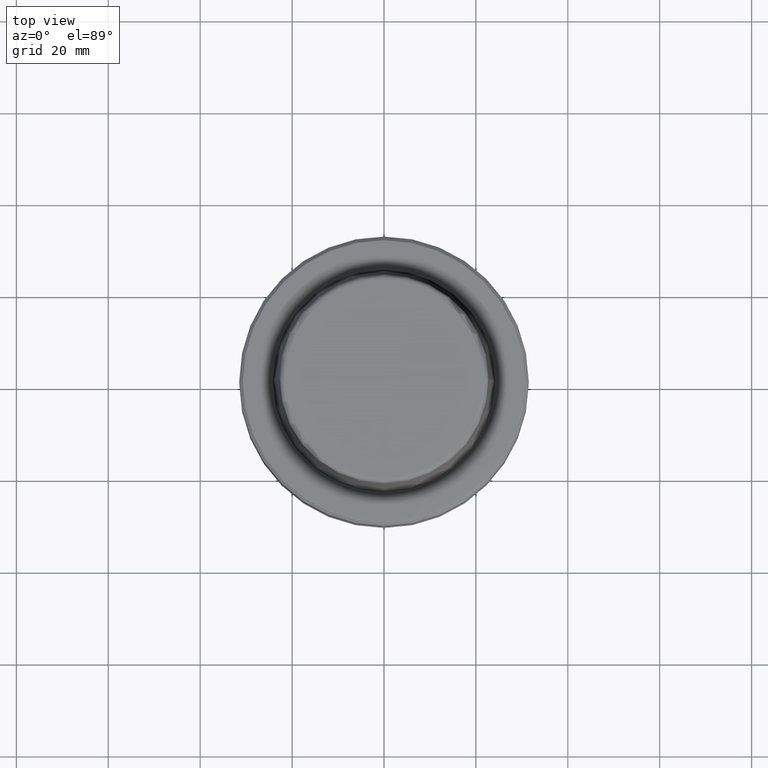
[diagram: clean part render]
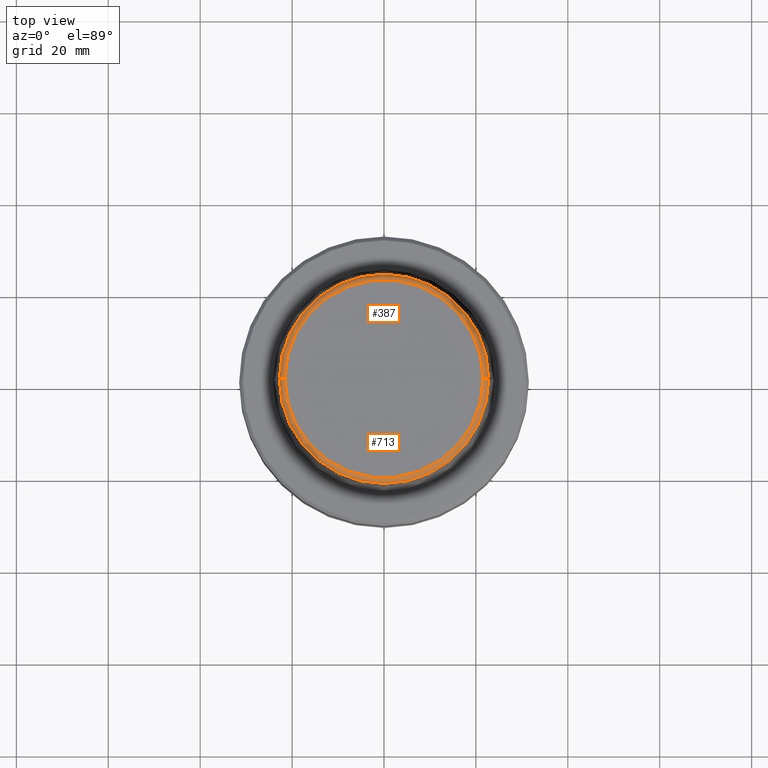
[diagram: same view with one multi-face feature highlighted, each face labeled with its STEP entity id]
A machine part, top view. The highlighted faces form ONE feature: a constant-radius fillet chain: 2 tangent blend faces with common blend radius 1.2 mm. The faces share edges in the B-rep.
Their STEP definitions:
[1] entity #387 (Torus):
#7 = CIRCLE ( 'NONE', #171, 21.58108272732117100 ) ;
#22 = VERTEX_POINT ( 'NONE', #414 ) ;
#40 = CARTESIAN_POINT ( 'NONE',  ( -22.77957961851797100, 0.0000000000000000000, 30.76004333261571900 ) ) ;
#77 = CARTESIAN_POINT ( 'NONE',  ( 21.58108272732117100, 0.0000000000000000000, 30.69999999999999200 ) ) ;
#104 = DIRECTION ( 'NONE',  ( -0.0000000000000000000, -0.0000000000000000000, 1.000000000000000000 ) ) ;
#109 = FACE_OUTER_BOUND ( 'NONE', #266, .T. ) ;
#133 = DIRECTION ( 'NONE',  ( -1.000000000000000000, 1.224646799147353200E-016, 0.0000000000000000000 ) ) ;
#141 = VERTEX_POINT ( 'NONE', #492 ) ;
#171 = AXIS2_PLACEMENT_3D ( 'NONE', #669, #104, #859 ) ;
#205 = DIRECTION ( 'NONE',  ( 1.224646799147353200E-016, 1.000000000000000000, 0.0000000000000000000 ) ) ;
#256 = DIRECTION ( 'NONE',  ( 0.0000000000000000000, 0.0000000000000000000, -1.000000000000000000 ) ) ;
#266 = EDGE_LOOP ( 'NONE', ( #1097, #1223, #290, #934 ) ) ;
#289 = CARTESIAN_POINT ( 'NONE',  ( 0.0000000000000000000, 0.0000000000000000000, 30.69999999999999200 ) ) ;
#290 = ORIENTED_EDGE ( 'NONE', *, *, #346, .F. ) ;
#319 = CARTESIAN_POINT ( 'NONE',  ( 22.77957961851797100, 2.874852597157249900E-015, 30.76004333261571900 ) ) ;
#344 = CIRCLE ( 'NONE', #1244, 1.200000000000003100 ) ;
#346 = EDGE_CURVE ( 'NONE', #22, #141, #7, .T. ) ;
#387 = ADVANCED_FACE ( 'NONE', ( #109 ), #1120, .T. ) ;
#414 = CARTESIAN_POINT ( 'NONE',  ( 21.58108272732117100, 0.0000000000000000000, 31.89999999999999900 ) ) ;
#445 = VERTEX_POINT ( 'NONE', #319 ) ;
#492 = CARTESIAN_POINT ( 'NONE',  ( -21.58108272732117100, 2.716307157494421400E-015, 31.89999999999999900 ) ) ;
#538 = CARTESIAN_POINT ( 'NONE',  ( 0.0000000000000000000, 0.0000000000000000000, 30.76004333261571900 ) ) ;
#591 = CIRCLE ( 'NONE', #646, 1.200000000000003100 ) ;
#632 = CIRCLE ( 'NONE', #823, 22.77957961851797100 ) ;
#646 = AXIS2_PLACEMENT_3D ( 'NONE', #77, #741, #256 ) ;
#669 = CARTESIAN_POINT ( 'NONE',  ( 0.0000000000000000000, 0.0000000000000000000, 31.89999999999999900 ) ) ;
#741 = DIRECTION ( 'NONE',  ( 0.0000000000000000000, -1.000000000000000000, 0.0000000000000000000 ) ) ;
#749 = DIRECTION ( 'NONE',  ( -0.0000000000000000000, -0.0000000000000000000, 1.000000000000000000 ) ) ;
#757 = AXIS2_PLACEMENT_3D ( 'NONE', #289, #962, #1076 ) ;
#767 = CARTESIAN_POINT ( 'NONE',  ( -21.58108272732117100, 2.642920388414810300E-015, 30.69999999999999200 ) ) ;
#770 = VERTEX_POINT ( 'NONE', #40 ) ;
#787 = EDGE_CURVE ( 'NONE', #770, #141, #344, .T. ) ;
#806 = EDGE_CURVE ( 'NONE', #445, #22, #591, .T. ) ;
#823 = AXIS2_PLACEMENT_3D ( 'NONE', #538, #749, #851 ) ;
#851 = DIRECTION ( 'NONE',  ( 1.000000000000000000, 0.0000000000000000000, 0.0000000000000000000 ) ) ;
#859 = DIRECTION ( 'NONE',  ( 1.000000000000000000, 0.0000000000000000000, 0.0000000000000000000 ) ) ;
#934 = ORIENTED_EDGE ( 'NONE', *, *, #806, .F. ) ;
#947 = EDGE_CURVE ( 'NONE', #445, #770, #632, .T. ) ;
#962 = DIRECTION ( 'NONE',  ( -0.0000000000000000000, -0.0000000000000000000, 1.000000000000000000 ) ) ;
#1076 = DIRECTION ( 'NONE',  ( 1.000000000000000000, 0.0000000000000000000, 0.0000000000000000000 ) ) ;
#1097 = ORIENTED_EDGE ( 'NONE', *, *, #947, .T. ) ;
#1120 = TOROIDAL_SURFACE ( 'NONE', #757, 21.58108272732117100, 1.200000000000003100 ) ;
#1223 = ORIENTED_EDGE ( 'NONE', *, *, #787, .T. ) ;
#1244 = AXIS2_PLACEMENT_3D ( 'NONE', #767, #205, #133 ) ;
[2] entity #713 (Torus):
#22 = VERTEX_POINT ( 'NONE', #414 ) ;
#40 = CARTESIAN_POINT ( 'NONE',  ( -22.77957961851797100, 0.0000000000000000000, 30.76004333261571900 ) ) ;
#77 = CARTESIAN_POINT ( 'NONE',  ( 21.58108272732117100, 0.0000000000000000000, 30.69999999999999200 ) ) ;
#114 = EDGE_CURVE ( 'NONE', #141, #22, #262, .T. ) ;
#130 = ORIENTED_EDGE ( 'NONE', *, *, #806, .T. ) ;
#133 = DIRECTION ( 'NONE',  ( -1.000000000000000000, 1.224646799147353200E-016, 0.0000000000000000000 ) ) ;
#141 = VERTEX_POINT ( 'NONE', #492 ) ;
#205 = DIRECTION ( 'NONE',  ( 1.224646799147353200E-016, 1.000000000000000000, 0.0000000000000000000 ) ) ;
#256 = DIRECTION ( 'NONE',  ( 0.0000000000000000000, 0.0000000000000000000, -1.000000000000000000 ) ) ;
#262 = CIRCLE ( 'NONE', #627, 21.58108272732117100 ) ;
#319 = CARTESIAN_POINT ( 'NONE',  ( 22.77957961851797100, 2.874852597157249900E-015, 30.76004333261571900 ) ) ;
#344 = CIRCLE ( 'NONE', #1244, 1.200000000000003100 ) ;
#361 = EDGE_CURVE ( 'NONE', #770, #445, #485, .T. ) ;
#393 = ORIENTED_EDGE ( 'NONE', *, *, #361, .T. ) ;
#395 = DIRECTION ( 'NONE',  ( -0.0000000000000000000, -0.0000000000000000000, 1.000000000000000000 ) ) ;
#401 = DIRECTION ( 'NONE',  ( -0.0000000000000000000, -0.0000000000000000000, 1.000000000000000000 ) ) ;
#414 = CARTESIAN_POINT ( 'NONE',  ( 21.58108272732117100, 0.0000000000000000000, 31.89999999999999900 ) ) ;
#430 = TOROIDAL_SURFACE ( 'NONE', #1204, 21.58108272732117100, 1.200000000000003100 ) ;
#445 = VERTEX_POINT ( 'NONE', #319 ) ;
#485 = CIRCLE ( 'NONE', #1211, 22.77957961851797100 ) ;
#492 = CARTESIAN_POINT ( 'NONE',  ( -21.58108272732117100, 2.716307157494421400E-015, 31.89999999999999900 ) ) ;
#591 = CIRCLE ( 'NONE', #646, 1.200000000000003100 ) ;
#621 = ORIENTED_EDGE ( 'NONE', *, *, #787, .F. ) ;
#627 = AXIS2_PLACEMENT_3D ( 'NONE', #1006, #401, #1114 ) ;
#646 = AXIS2_PLACEMENT_3D ( 'NONE', #77, #741, #256 ) ;
#647 = FACE_OUTER_BOUND ( 'NONE', #1044, .T. ) ;
#683 = DIRECTION ( 'NONE',  ( 1.000000000000000000, 0.0000000000000000000, 0.0000000000000000000 ) ) ;
#713 = ADVANCED_FACE ( 'NONE', ( #647 ), #430, .T. ) ;
#741 = DIRECTION ( 'NONE',  ( 0.0000000000000000000, -1.000000000000000000, 0.0000000000000000000 ) ) ;
#767 = CARTESIAN_POINT ( 'NONE',  ( -21.58108272732117100, 2.642920388414810300E-015, 30.69999999999999200 ) ) ;
#770 = VERTEX_POINT ( 'NONE', #40 ) ;
#787 = EDGE_CURVE ( 'NONE', #770, #141, #344, .T. ) ;
#806 = EDGE_CURVE ( 'NONE', #445, #22, #591, .T. ) ;
#1005 = DIRECTION ( 'NONE',  ( -0.0000000000000000000, -0.0000000000000000000, 1.000000000000000000 ) ) ;
#1006 = CARTESIAN_POINT ( 'NONE',  ( 0.0000000000000000000, 0.0000000000000000000, 31.89999999999999900 ) ) ;
#1044 = EDGE_LOOP ( 'NONE', ( #621, #393, #130, #1160 ) ) ;
#1086 = CARTESIAN_POINT ( 'NONE',  ( 0.0000000000000000000, 0.0000000000000000000, 30.69999999999999200 ) ) ;
#1087 = DIRECTION ( 'NONE',  ( 1.000000000000000000, 0.0000000000000000000, 0.0000000000000000000 ) ) ;
#1114 = DIRECTION ( 'NONE',  ( 1.000000000000000000, 0.0000000000000000000, 0.0000000000000000000 ) ) ;
#1147 = CARTESIAN_POINT ( 'NONE',  ( 0.0000000000000000000, 0.0000000000000000000, 30.76004333261571900 ) ) ;
#1160 = ORIENTED_EDGE ( 'NONE', *, *, #114, .F. ) ;
#1204 = AXIS2_PLACEMENT_3D ( 'NONE', #1086, #1005, #683 ) ;
#1211 = AXIS2_PLACEMENT_3D ( 'NONE', #1147, #395, #1087 ) ;
#1244 = AXIS2_PLACEMENT_3D ( 'NONE', #767, #205, #133 ) ;